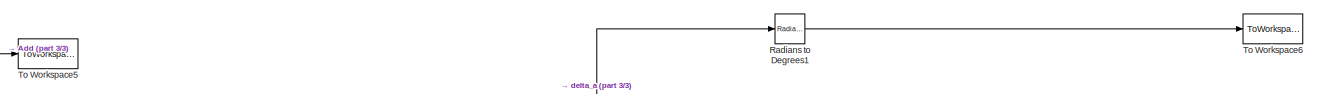
[diagram: root canvas - part 1/3, top center region]
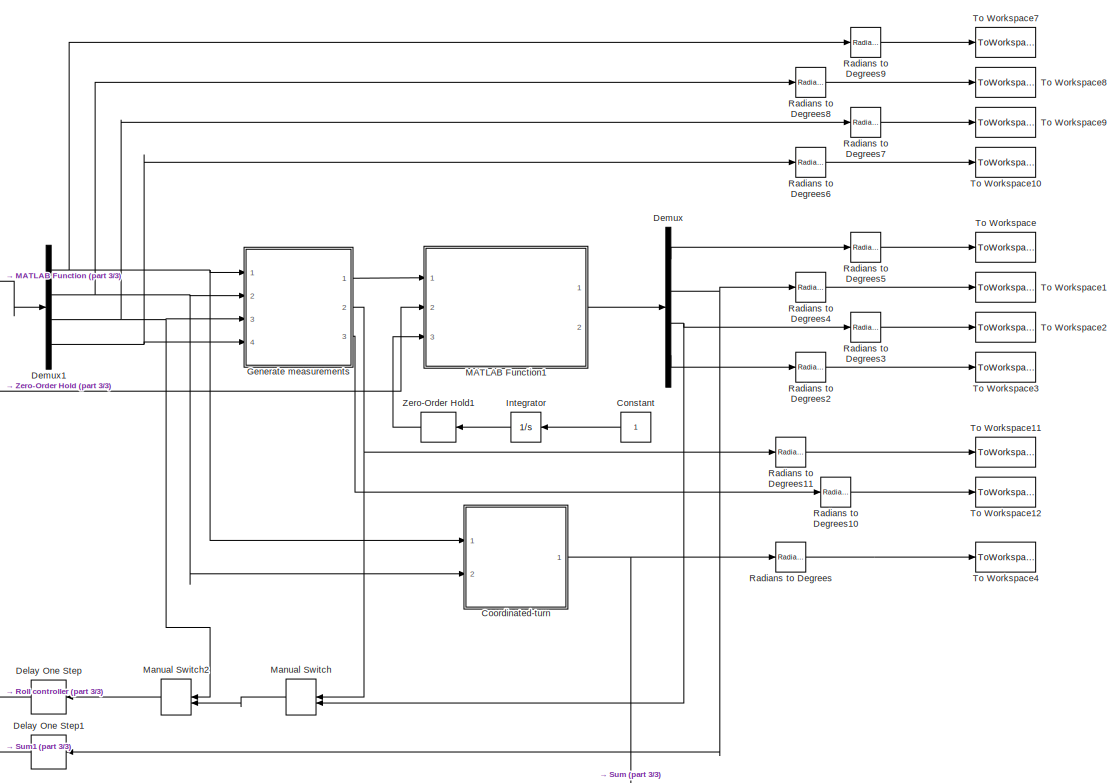
[diagram: root canvas - part 2/3, right side, full height]
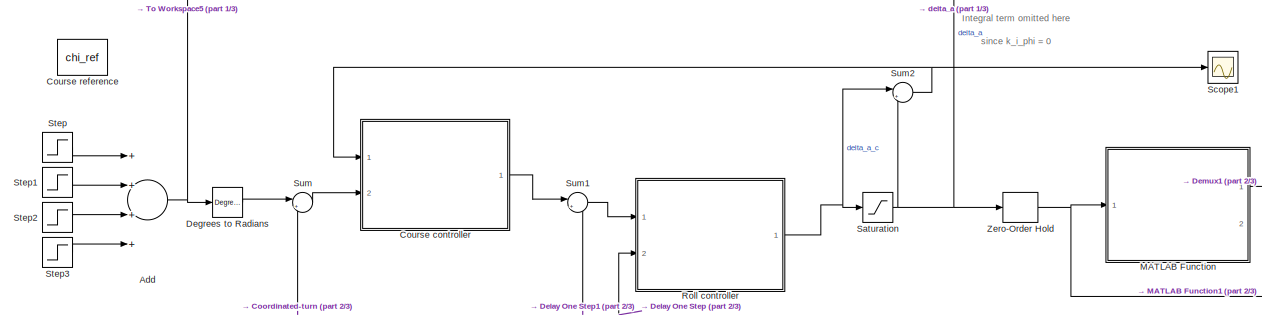
[diagram: root canvas - part 3/3, middle left region]
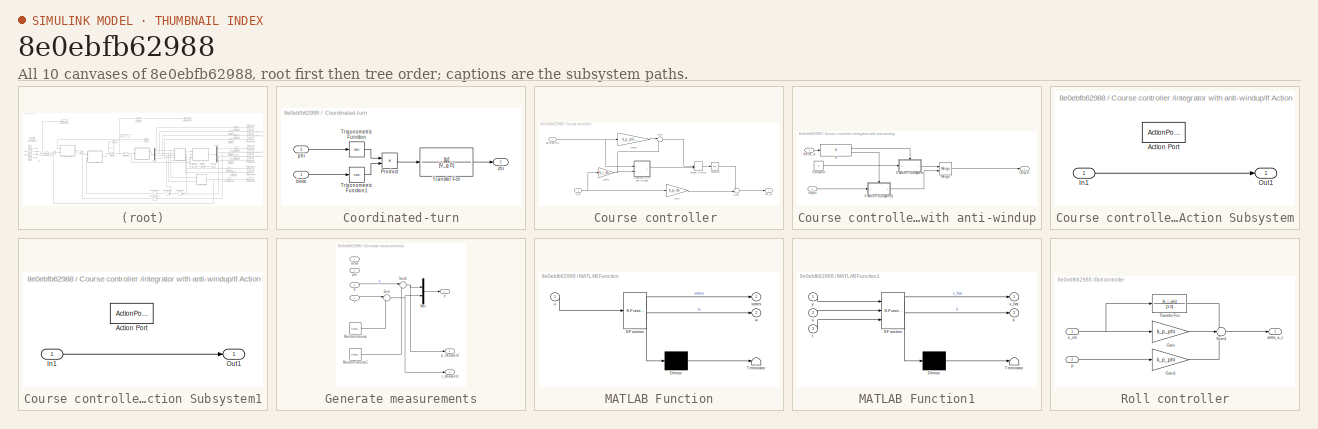
[diagram: thumbnail index - all 10 canvases of the model, root first then tree order]
MODEL slx_8e0ebfb62988
KIND model
CONFIG AbsTol = auto
CONFIG EnableMultiTasking = off
CONFIG FixedStep = 0.01
CONFIG MaxStep = auto
CONFIG MinStep = auto
CONFIG RelTol = 1e-3
CONFIG SampleTimeConstraint = Unconstrained
CONFIG Solver = FixedStepAuto
CONFIG SolverName = FixedStepAuto
CONFIG StartTime = 0.0
CONFIG StopTime = 1000
BLOCK [Sum] Add
  InputSameDT = off
  Inputs = ++++
  OutDataTypeStr = Inherit: Inherit via internal rule
  Ports = [4, 1]
  SaturateOnIntegerOverflow = off
BLOCK [Constant] Constant
BLOCK [SubSystem] Coordinated-turn
  Ports = [2, 1]
  RequestExecContextInheritance = off
BLOCK [Product] Coordinated-turn/Product
  InputSameDT = off
  OutDataTypeStr = Inherit: Inherit via internal rule
  Ports = [2, 1]
  RndMeth = Floor
  SaturateOnIntegerOverflow = off
BLOCK [TransferFcn] Coordinated-turn/Transfer Fcn
  Denominator = [V_g 0]
  Numerator = [g]
BLOCK [Trigonometry] Coordinated-turn/Trigonometric Function
  Operator = tan
  Ports = [1, 1]
BLOCK [Trigonometry] Coordinated-turn/Trigonometric Function1
  Operator = cos
  Ports = [1, 1]
BLOCK [Inport] Coordinated-turn/beta
  IconDisplay = Port number
BLOCK [Outport] Coordinated-turn/chi
  IconDisplay = Port number
BLOCK [Inport] Coordinated-turn/phi
  IconDisplay = Port number
  Port = 2
BLOCK [SubSystem] Course controller 
  Ports = [2, 1]
  RequestExecContextInheritance = off
BLOCK [Gain] Course controller /Gain
  Gain = k_p_chi
  OutDataTypeStr = Inherit: Inherit via internal rule
  ParamDataTypeStr = Inherit: Inherit via internal rule
  SaturateOnIntegerOverflow = off
BLOCK [Gain] Course controller /Gain1
  Gain = k_i_chi
  OutDataTypeStr = Inherit: Inherit via internal rule
  ParamDataTypeStr = Inherit: Inherit via internal rule
  SaturateOnIntegerOverflow = off
BLOCK [Gain] Course controller /Gain8
  Gain = k_p_phi*k_p_chi*0.3
  OutDataTypeStr = Inherit: Inherit via internal rule
  ParamDataTypeStr = Inherit: Inherit via internal rule
  SaturateOnIntegerOverflow = off
BLOCK [Integrator] Course controller /Integrator
  Ports = [1, 1]
BLOCK [ManualSwitch] Course controller /Manual Switch
  CurrentSetting = 0
BLOCK [Sum] Course controller /Sum
  IconShape = round
  InputSameDT = off
  Inputs = |-+
  OutDataTypeStr = Inherit: Inherit via internal rule
  Ports = [2, 1]
  SaturateOnIntegerOverflow = off
BLOCK [Sum] Course controller /Sum1
  IconShape = round
  InputSameDT = off
  Inputs = ++|
  OutDataTypeStr = Inherit: Inherit via internal rule
  Ports = [2, 1]
  SaturateOnIntegerOverflow = off
BLOCK [Inport] Course controller /delta_delta_a 
  IconDisplay = Port number
BLOCK [Inport] Course controller /e_chi
  IconDisplay = Port number
  Port = 2
BLOCK [SubSystem] Course controller /integrator with anti-windup
  Ports = [2, 1]
  RequestExecContextInheritance = off
BLOCK [Constant] Course controller /integrator with anti-windup/Constant
  Value = 0
BLOCK [If] Course controller /integrator with anti-windup/If
  IfExpression = u1 ~= 0
  Ports = [1, 2]
BLOCK [SubSystem] Course controller /integrator with anti-windup/If Action Subsystem
  Ports = [1, 1, 0, 0, 0, 0, 0, 1]
  RequestExecContextInheritance = off
  TreatAsAtomicUnit = on
BLOCK [ActionPort] Course controller /integrator with anti-windup/If Action Subsystem/Action Port
  ActionPortLabel = if(u1 ~= 0)
BLOCK [Inport] Course controller /integrator with anti-windup/If Action Subsystem/In1
  IconDisplay = Port number
BLOCK [Outport] Course controller /integrator with anti-windup/If Action Subsystem/Out1
  IconDisplay = Port number
BLOCK [SubSystem] Course controller /integrator with anti-windup/If Action Subsystem1
  Ports = [1, 1, 0, 0, 0, 0, 0, 1]
  RequestExecContextInheritance = off
  TreatAsAtomicUnit = on
BLOCK [ActionPort] Course controller /integrator with anti-windup/If Action Subsystem1/Action Port
  ActionPortLabel = else
BLOCK [Inport] Course controller /integrator with anti-windup/If Action Subsystem1/In1
  IconDisplay = Port number
BLOCK [Outport] Course controller /integrator with anti-windup/If Action Subsystem1/Out1
  IconDisplay = Port number
BLOCK [Inport] Course controller /integrator with anti-windup/Input
  IconDisplay = Port number
  Port = 2
BLOCK [Merge] Course controller /integrator with anti-windup/Merge
  Ports = [2, 1]
BLOCK [Outport] Course controller /integrator with anti-windup/Output
  IconDisplay = Port number
BLOCK [Inport] Course controller /integrator with anti-windup/delta_a
  IconDisplay = Port number
BLOCK [Outport] Course controller /phi_ref 
  IconDisplay = Port number
BLOCK [Constant] Course reference 
  Commented = on
  Value = chi_ref
BLOCK [Reference] Degrees to Radians  REF=simulink_extras/Transformations/Degrees to
Radians
  Ports = [1, 1]
  SourceBlock = simulink_extras/Transformations/Degrees to\nRadians
  SourceProductBaseCode = SL
  SourceProductName = Simulink
  SourceType = DegreesToRadians
BLOCK [Delay] Delay One Step
  DelayLength = 1
  InputPortMap = u0
  Ports = [1, 1]
BLOCK [Delay] Delay One Step1
  DelayLength = 1
  InputPortMap = u0
  Ports = [1, 1]
BLOCK [Demux] Demux
  DisplayOption = bar
  Ports = [1, 4]
BLOCK [Demux] Demux1
  DisplayOption = bar
  Ports = [1, 4]
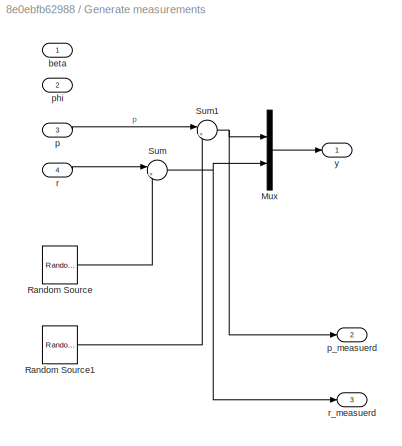
BLOCK [SubSystem] Generate measurements
  Ports = [4, 3]
  RequestExecContextInheritance = off
BLOCK [Mux] Generate measurements/Mux
  DisplayOption = bar
  Inputs = 2
  Ports = [2, 1]
BLOCK [Reference] Generate measurements/Random Source  REF=dspsrcs4/Random
Source
  Ports = [0, 1]
  SourceBlock = dspsrcs4/Random\nSource
  SourceProductBaseCode = DS
  SourceProductName = DSP System Toolbox
  SourceType = Random Source
  UserDataPersistent = on
BLOCK [Reference] Generate measurements/Random Source1  REF=dspsrcs4/Random
Source
  Ports = [0, 1]
  SourceBlock = dspsrcs4/Random\nSource
  SourceProductBaseCode = DS
  SourceProductName = DSP System Toolbox
  SourceType = Random Source
  UserDataPersistent = on
BLOCK [Sum] Generate measurements/Sum
  IconShape = round
  InputSameDT = off
  Inputs = |++
  OutDataTypeStr = Inherit: Inherit via internal rule
  Ports = [2, 1]
  SaturateOnIntegerOverflow = off
BLOCK [Sum] Generate measurements/Sum1
  IconShape = round
  InputSameDT = off
  Inputs = |++
  OutDataTypeStr = Inherit: Inherit via internal rule
  Ports = [2, 1]
  SaturateOnIntegerOverflow = off
BLOCK [Inport] Generate measurements/beta 
  IconDisplay = Port number
BLOCK [Inport] Generate measurements/p
  IconDisplay = Port number
  Port = 3
BLOCK [Outport] Generate measurements/p_measuerd
  IconDisplay = Port number
  Port = 2
BLOCK [Inport] Generate measurements/phi
  IconDisplay = Port number
  Port = 2
BLOCK [Inport] Generate measurements/r
  IconDisplay = Port number
  Port = 4
BLOCK [Outport] Generate measurements/r_measuerd
  IconDisplay = Port number
  Port = 3
BLOCK [Outport] Generate measurements/y
  IconDisplay = Port number
BLOCK [Integrator] Integrator
  Ports = [1, 1]
BLOCK [SubSystem] MATLAB Function
  ErrorFcn = Stateflow.Translate.translate
  PermitHierarchicalResolution = ExplicitOnly
  Ports = [1, 2]
  RequestExecContextInheritance = off
  SFBlockType = MATLAB Function
  TreatAsAtomicUnit = on
BLOCK [Demux] MATLAB Function/ Demux 
  Outputs = 1
  Ports = [1, 1]
BLOCK [S-Function] MATLAB Function/ SFunction 
  EnableBusSupport = on
  FunctionName = sf_sfun
  PortCounts = [1 3]
  Ports = [1, 3]
  SFcnIsStateOwnerBlock = off
  SFunctionDeploymentMode = off
  Tag = Stateflow S-Function A2_Part3_simulink_model 2
BLOCK [Terminator] MATLAB Function/ Terminator 
BLOCK [Outport] MATLAB Function/states
  IconDisplay = Port number
BLOCK [Inport] MATLAB Function/u
  IconDisplay = Port number
BLOCK [Outport] MATLAB Function/w
  IconDisplay = Port number
  Port = 2
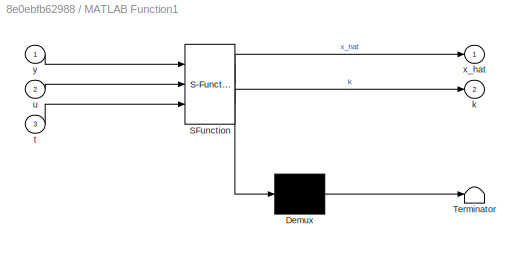
BLOCK [SubSystem] MATLAB Function1
  ErrorFcn = Stateflow.Translate.translate
  PermitHierarchicalResolution = ExplicitOnly
  Ports = [3, 2]
  RequestExecContextInheritance = off
  SFBlockType = MATLAB Function
  TreatAsAtomicUnit = on
BLOCK [Demux] MATLAB Function1/ Demux 
  Outputs = 1
  Ports = [1, 1]
BLOCK [S-Function] MATLAB Function1/ SFunction 
  EnableBusSupport = on
  FunctionName = sf_sfun
  PortCounts = [3 3]
  Ports = [3, 3]
  SFcnIsStateOwnerBlock = off
  SFunctionDeploymentMode = off
  Tag = Stateflow S-Function A2_Part3_simulink_model 1
BLOCK [Terminator] MATLAB Function1/ Terminator 
BLOCK [Outport] MATLAB Function1/k
  IconDisplay = Port number
  Port = 2
BLOCK [Inport] MATLAB Function1/t
  IconDisplay = Port number
  Port = 3
BLOCK [Inport] MATLAB Function1/u
  IconDisplay = Port number
  Port = 2
BLOCK [Outport] MATLAB Function1/x_hat
  IconDisplay = Port number
BLOCK [Inport] MATLAB Function1/y
  IconDisplay = Port number
BLOCK [ManualSwitch] Manual Switch
  CurrentSetting = 0
BLOCK [ManualSwitch] Manual Switch2
  CurrentSetting = 0
BLOCK [Reference] Radians to Degrees  REF=simulink_extras/Transformations/Radians
to Degrees
  Ports = [1, 1]
  SourceBlock = simulink_extras/Transformations/Radians\nto Degrees
  SourceProductBaseCode = SL
  SourceProductName = Simulink
  SourceType = RadiansToDegrees
BLOCK [Reference] Radians to Degrees1  REF=simulink_extras/Transformations/Radians
to Degrees
  Ports = [1, 1]
  SourceBlock = simulink_extras/Transformations/Radians\nto Degrees
  SourceProductBaseCode = SL
  SourceProductName = Simulink
  SourceType = RadiansToDegrees
BLOCK [Reference] Radians to Degrees10  REF=simulink_extras/Transformations/Radians
to Degrees
  Ports = [1, 1]
  SourceBlock = simulink_extras/Transformations/Radians\nto Degrees
  SourceProductBaseCode = SL
  SourceProductName = Simulink
  SourceType = RadiansToDegrees
BLOCK [Reference] Radians to Degrees11  REF=simulink_extras/Transformations/Radians
to Degrees
  Ports = [1, 1]
  SourceBlock = simulink_extras/Transformations/Radians\nto Degrees
  SourceProductBaseCode = SL
  SourceProductName = Simulink
  SourceType = RadiansToDegrees
BLOCK [Reference] Radians to Degrees2  REF=simulink_extras/Transformations/Radians
to Degrees
  Ports = [1, 1]
  SourceBlock = simulink_extras/Transformations/Radians\nto Degrees
  SourceProductBaseCode = SL
  SourceProductName = Simulink
  SourceType = RadiansToDegrees
BLOCK [Reference] Radians to Degrees3  REF=simulink_extras/Transformations/Radians
to Degrees
  Ports = [1, 1]
  SourceBlock = simulink_extras/Transformations/Radians\nto Degrees
  SourceProductBaseCode = SL
  SourceProductName = Simulink
  SourceType = RadiansToDegrees
BLOCK [Reference] Radians to Degrees4  REF=simulink_extras/Transformations/Radians
to Degrees
  Ports = [1, 1]
  SourceBlock = simulink_extras/Transformations/Radians\nto Degrees
  SourceProductBaseCode = SL
  SourceProductName = Simulink
  SourceType = RadiansToDegrees
BLOCK [Reference] Radians to Degrees5  REF=simulink_extras/Transformations/Radians
to Degrees
  Ports = [1, 1]
  SourceBlock = simulink_extras/Transformations/Radians\nto Degrees
  SourceProductBaseCode = SL
  SourceProductName = Simulink
  SourceType = RadiansToDegrees
BLOCK [Reference] Radians to Degrees6  REF=simulink_extras/Transformations/Radians
to Degrees
  Ports = [1, 1]
  SourceBlock = simulink_extras/Transformations/Radians\nto Degrees
  SourceProductBaseCode = SL
  SourceProductName = Simulink
  SourceType = RadiansToDegrees
BLOCK [Reference] Radians to Degrees7  REF=simulink_extras/Transformations/Radians
to Degrees
  Ports = [1, 1]
  SourceBlock = simulink_extras/Transformations/Radians\nto Degrees
  SourceProductBaseCode = SL
  SourceProductName = Simulink
  SourceType = RadiansToDegrees
BLOCK [Reference] Radians to Degrees8  REF=simulink_extras/Transformations/Radians
to Degrees
  Ports = [1, 1]
  SourceBlock = simulink_extras/Transformations/Radians\nto Degrees
  SourceProductBaseCode = SL
  SourceProductName = Simulink
  SourceType = RadiansToDegrees
BLOCK [Reference] Radians to Degrees9  REF=simulink_extras/Transformations/Radians
to Degrees
  Ports = [1, 1]
  SourceBlock = simulink_extras/Transformations/Radians\nto Degrees
  SourceProductBaseCode = SL
  SourceProductName = Simulink
  SourceType = RadiansToDegrees
BLOCK [SubSystem] Roll controller
  Ports = [2, 1]
  RequestExecContextInheritance = off
BLOCK [Gain] Roll controller/Gain
  Gain = k_p_phi
  OutDataTypeStr = Inherit: Inherit via internal rule
  ParamDataTypeStr = Inherit: Inherit via internal rule
  SaturateOnIntegerOverflow = off
BLOCK [Gain] Roll controller/Gain1
  Gain = k_p_phi
  OutDataTypeStr = Inherit: Inherit via internal rule
  ParamDataTypeStr = Inherit: Inherit via internal rule
  SaturateOnIntegerOverflow = off
BLOCK [Sum] Roll controller/Sum1
  IconShape = round
  InputSameDT = off
  Inputs = ++-
  OutDataTypeStr = Inherit: Inherit via internal rule
  Ports = [3, 1]
  SaturateOnIntegerOverflow = off
BLOCK [TransferFcn] Roll controller/Transfer Fcn
  Denominator = [1 0]
  Numerator = [k_i_phi]
BLOCK [Outport] Roll controller/delta_a_c 
  IconDisplay = Port number
BLOCK [Inport] Roll controller/e_chi
  IconDisplay = Port number
BLOCK [Inport] Roll controller/p
  IconDisplay = Port number
  Port = 2
BLOCK [Saturate] Saturation
  InputPortMap = u0
  LowerLimit = -pi/6
  Ports = [1, 1]
  UpperLimit = pi/6
BLOCK [Scope] Scope1
  Floating = off
  NumInputPorts = 1
  Ports = [1]
  ScopeSpecificationString = Simulink.scopes.TimeScopeBlockCfg('CurrentConfiguration', extmgr.ConfigurationSet(extmgr.Configuration('Core','General UI',true),extmgr.Configuration('Core','Source UI',true),extmgr.Configuration('Sources','WiredSimulink',true,'DataLoggingVariableName','ScopeData1'),extmgr.Configuration('Visuals','Time Domain',true,'SerializedDisplays',{struct('MinYLimReal','-2.27853','MaxYLimReal','4.37762','YLab...<+1363ch>
BLOCK [Step] Step
  After = 7.5
  SampleTime = 0
  Time = 100
BLOCK [Step] Step1
  After = 7.5
  SampleTime = 0
  Time = 150
BLOCK [Step] Step2
  After = -15
  SampleTime = 0
  Time = 250
BLOCK [Step] Step3
  After = -5
  SampleTime = 0
  Time = 300
BLOCK [Sum] Sum
  IconShape = round
  InputSameDT = off
  Inputs = |+-
  OutDataTypeStr = Inherit: Inherit via internal rule
  Ports = [2, 1]
  SaturateOnIntegerOverflow = off
BLOCK [Sum] Sum1
  IconShape = round
  InputSameDT = off
  Inputs = |+-
  OutDataTypeStr = Inherit: Inherit via internal rule
  Ports = [2, 1]
  SaturateOnIntegerOverflow = off
BLOCK [Sum] Sum2
  IconShape = round
  InputSameDT = off
  Inputs = |+-
  OutDataTypeStr = Inherit: Inherit via internal rule
  Ports = [2, 1]
  SaturateOnIntegerOverflow = off
BLOCK [ToWorkspace] To Workspace
  FixptAsFi = on
  MaxDataPoints = inf
  Ports = [1]
  SampleTime = -1
  SaveFormat = Timeseries
  VariableName = beta_hat
BLOCK [ToWorkspace] To Workspace1
  FixptAsFi = on
  MaxDataPoints = inf
  Ports = [1]
  SampleTime = -1
  SaveFormat = Timeseries
  VariableName = phi_hat
BLOCK [ToWorkspace] To Workspace10
  FixptAsFi = on
  MaxDataPoints = inf
  Ports = [1]
  SampleTime = -1
  SaveFormat = Timeseries
  VariableName = r
BLOCK [ToWorkspace] To Workspace11
  FixptAsFi = on
  MaxDataPoints = inf
  Ports = [1]
  SampleTime = -1
  SaveFormat = Timeseries
  VariableName = p_measured
BLOCK [ToWorkspace] To Workspace12
  FixptAsFi = on
  MaxDataPoints = inf
  Ports = [1]
  SampleTime = -1
  SaveFormat = Timeseries
  VariableName = r_measured
BLOCK [ToWorkspace] To Workspace2
  FixptAsFi = on
  MaxDataPoints = inf
  Ports = [1]
  SampleTime = -1
  SaveFormat = Timeseries
  VariableName = p_hat
BLOCK [ToWorkspace] To Workspace3
  FixptAsFi = on
  MaxDataPoints = inf
  Ports = [1]
  SampleTime = -1
  SaveFormat = Timeseries
  VariableName = r_hat
BLOCK [ToWorkspace] To Workspace4
  FixptAsFi = on
  MaxDataPoints = inf
  Ports = [1]
  SampleTime = -1
  SaveFormat = Timeseries
  VariableName = chi
BLOCK [ToWorkspace] To Workspace5
  FixptAsFi = on
  MaxDataPoints = inf
  Ports = [1]
  SampleTime = -1
  SaveFormat = Timeseries
  VariableName = chi_control
BLOCK [ToWorkspace] To Workspace6
  FixptAsFi = on
  MaxDataPoints = inf
  Ports = [1]
  SampleTime = -1
  SaveFormat = Timeseries
  VariableName = delta_control
BLOCK [ToWorkspace] To Workspace7
  FixptAsFi = on
  MaxDataPoints = inf
  Ports = [1]
  SampleTime = -1
  SaveFormat = Timeseries
  VariableName = beta
BLOCK [ToWorkspace] To Workspace8
  FixptAsFi = on
  MaxDataPoints = inf
  Ports = [1]
  SampleTime = -1
  SaveFormat = Timeseries
  VariableName = phi
BLOCK [ToWorkspace] To Workspace9
  FixptAsFi = on
  MaxDataPoints = inf
  Ports = [1]
  SampleTime = -1
  SaveFormat = Timeseries
  VariableName = p
BLOCK [ZeroOrderHold] Zero-Order Hold
  SampleTime = -1
BLOCK [ZeroOrderHold] Zero-Order Hold1
  SampleTime = -1
ANNOTATION (root): Integral term omitted here since k_i_phi = 0
NET Add:1 -> Degrees to Radians:1, To Workspace5:1
LINE Constant:1 -> Integrator:1
LINE Coordinated-turn/Product:1 -> Coordinated-turn/Transfer Fcn:1
LINE Coordinated-turn/Transfer Fcn:1 -> Coordinated-turn/chi:1
LINE Coordinated-turn/Trigonometric Function1:1 -> Coordinated-turn/Product:2
LINE Coordinated-turn/Trigonometric Function:1 -> Coordinated-turn/Product:1
LINE Coordinated-turn/beta:1 -> Coordinated-turn/Trigonometric Function1:1
LINE Coordinated-turn/phi:1 -> Coordinated-turn/Trigonometric Function:1
NET Coordinated-turn:1 -> Radians to Degrees:1, Sum:2
NET Course controller /Gain1:1 -> Course controller /Sum:2, Course controller /integrator with anti-windup:2
LINE Course controller /Gain8:1 -> Course controller /Sum:1
LINE Course controller /Gain:1 -> Course controller /Sum1:2
LINE Course controller /Integrator:1 -> Course controller /Sum1:1
LINE Course controller /Manual Switch:1 -> Course controller /Integrator:1
LINE Course controller /Sum1:1 -> Course controller /phi_ref :1
LINE Course controller /Sum:1 -> Course controller /Manual Switch:1
NET Course controller /delta_delta_a :1 -> Course controller /Gain8:1, Course controller /integrator with anti-windup:1
NET Course controller /e_chi:1 -> Course controller /Gain1:1, Course controller /Gain:1
LINE Course controller /integrator with anti-windup/Constant:1 -> Course controller /integrator with anti-windup/If Action Subsystem:1
LINE Course controller /integrator with anti-windup/If Action Subsystem/In1:1 -> Course controller /integrator with anti-windup/If Action Subsystem/Out1:1
LINE Course controller /integrator with anti-windup/If Action Subsystem1/In1:1 -> Course controller /integrator with anti-windup/If Action Subsystem1/Out1:1
LINE Course controller /integrator with anti-windup/If Action Subsystem1:1 -> Course controller /integrator with anti-windup/Merge:2
LINE Course controller /integrator with anti-windup/If Action Subsystem:1 -> Course controller /integrator with anti-windup/Merge:1
LINE Course controller /integrator with anti-windup/If:1 -> Course controller /integrator with anti-windup/If Action Subsystem:ifaction
LINE Course controller /integrator with anti-windup/If:2 -> Course controller /integrator with anti-windup/If Action Subsystem1:ifaction
LINE Course controller /integrator with anti-windup/Input:1 -> Course controller /integrator with anti-windup/If Action Subsystem1:1
LINE Course controller /integrator with anti-windup/Merge:1 -> Course controller /integrator with anti-windup/Output:1
LINE Course controller /integrator with anti-windup/delta_a:1 -> Course controller /integrator with anti-windup/If:1
LINE Course controller /integrator with anti-windup:1 -> Course controller /Manual Switch:2
LINE Course controller :1 -> Sum1:1
LINE Degrees to Radians:1 -> Sum:1
LINE Delay One Step1:1 -> Sum1:2
LINE Delay One Step:1 -> Roll controller:2
NET Demux1:1 -> Coordinated-turn:1, Generate measurements:1, Radians to Degrees9:1
NET Demux1:2 -> Coordinated-turn:2, Generate measurements:2, Radians to Degrees8:1
NET Demux1:3 -> Generate measurements:3, Manual Switch2:1, Radians to Degrees7:1
NET Demux1:4 -> Generate measurements:4, Radians to Degrees6:1
LINE Demux:1 -> Radians to Degrees5:1
NET Demux:2 -> Delay One Step1:1, Radians to Degrees4:1
NET Demux:3 -> Manual Switch:2, Radians to Degrees3:1
LINE Demux:4 -> Radians to Degrees2:1
LINE Generate measurements/Mux:1 -> Generate measurements/y:1
LINE Generate measurements/Random Source1:1 -> Generate measurements/Sum1:2
LINE Generate measurements/Random Source:1 -> Generate measurements/Sum:2
NET Generate measurements/Sum1:1 -> Generate measurements/Mux:1, Generate measurements/p_measuerd:1
NET Generate measurements/Sum:1 -> Generate measurements/Mux:2, Generate measurements/r_measuerd:1
LINE Generate measurements/p:1 -> Generate measurements/Sum1:1
LINE Generate measurements/r:1 -> Generate measurements/Sum:1
LINE Generate measurements:1 -> MATLAB Function1:1
NET Generate measurements:2 -> Manual Switch:1, Radians to Degrees11:1
LINE Generate measurements:3 -> Radians to Degrees10:1
LINE Integrator:1 -> Zero-Order Hold1:1
LINE MATLAB Function1:1 -> Demux:1
LINE MATLAB Function:1 -> Demux1:1
LINE Manual Switch2:1 -> Delay One Step:1
LINE Manual Switch:1 -> Manual Switch2:2
LINE Radians to Degrees10:1 -> To Workspace12:1
LINE Radians to Degrees11:1 -> To Workspace11:1
LINE Radians to Degrees1:1 -> To Workspace6:1
LINE Radians to Degrees2:1 -> To Workspace3:1
LINE Radians to Degrees3:1 -> To Workspace2:1
LINE Radians to Degrees4:1 -> To Workspace1:1
LINE Radians to Degrees5:1 -> To Workspace:1
LINE Radians to Degrees6:1 -> To Workspace10:1
LINE Radians to Degrees7:1 -> To Workspace9:1
LINE Radians to Degrees8:1 -> To Workspace8:1
LINE Radians to Degrees9:1 -> To Workspace7:1
LINE Radians to Degrees:1 -> To Workspace4:1
LINE Roll controller/Gain1:1 -> Roll controller/Sum1:3
LINE Roll controller/Gain:1 -> Roll controller/Sum1:2
LINE Roll controller/Sum1:1 -> Roll controller/delta_a_c :1
LINE Roll controller/Transfer Fcn:1 -> Roll controller/Sum1:1
NET Roll controller/e_chi:1 -> Roll controller/Gain:1, Roll controller/Transfer Fcn:1
LINE Roll controller/p:1 -> Roll controller/Gain1:1
NET Roll controller:1 -> Saturation:1, Sum2:1
NET Saturation:1 -> Radians to Degrees1:1, Sum2:2, Zero-Order Hold:1
LINE Step1:1 -> Add:2
LINE Step2:1 -> Add:3
LINE Step3:1 -> Add:4
LINE Step:1 -> Add:1
LINE Sum1:1 -> Roll controller:1
NET Sum2:1 -> Course controller :1, Scope1:1
LINE Sum:1 -> Course controller :2
LINE Zero-Order Hold1:1 -> MATLAB Function1:3
NET Zero-Order Hold:1 -> MATLAB Function1:2, MATLAB Function:1
note: NET lines group one-source signal fan-out (src -> all destinations, sorted); 1:1 wires keep LINE
CHART MATLAB Function1 states=1 transitions=1
  STATE_LABEL 'eML_blk_kernel()'
  STATE_LABEL "SCRIPT:\nfunction [x_hat, k]= kalman(y, u, t)\n    persistent init_flag P_a_priori x_hat_a_priori P_post_priori y_a_priori S \n\n    if isempty(init_flag)\n        S = load('kalman_variables');\n        init_flag = 1;\n        P_a_priori = S.P0_a_priori;\n        x_hat_a_priori = S.x_hat_0_a_priori;\n    end\n    \n    if t > 250\n        S.R = [10000000 0;0 10000000];\n    end\n    \n    kalman_gain = P_a_prior...<+501ch>"
CHART MATLAB Function states=1 transitions=1
  STATE_LABEL 'eML_blk_kernel()'
  STATE_LABEL 'SCRIPT:\nfunction [states, w] = state_space(u)\n% Generate the output of the state space\n\n    % Persistent variables to be kept between function calls\n    persistent counter; % Variable for checking if it is the first iteration.\n    persistent x;       % The state x\n    \n   % The next line is necessary for generating unique process noise for every simulation.\n   % Otherwise, the noise will be equal ...<+1611ch>'
